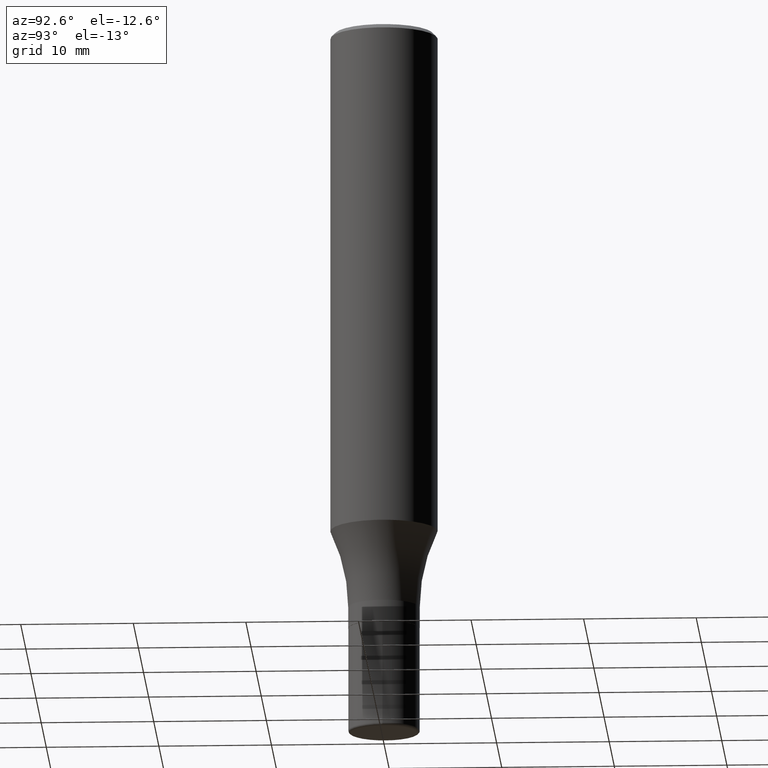
[diagram: clean part render]
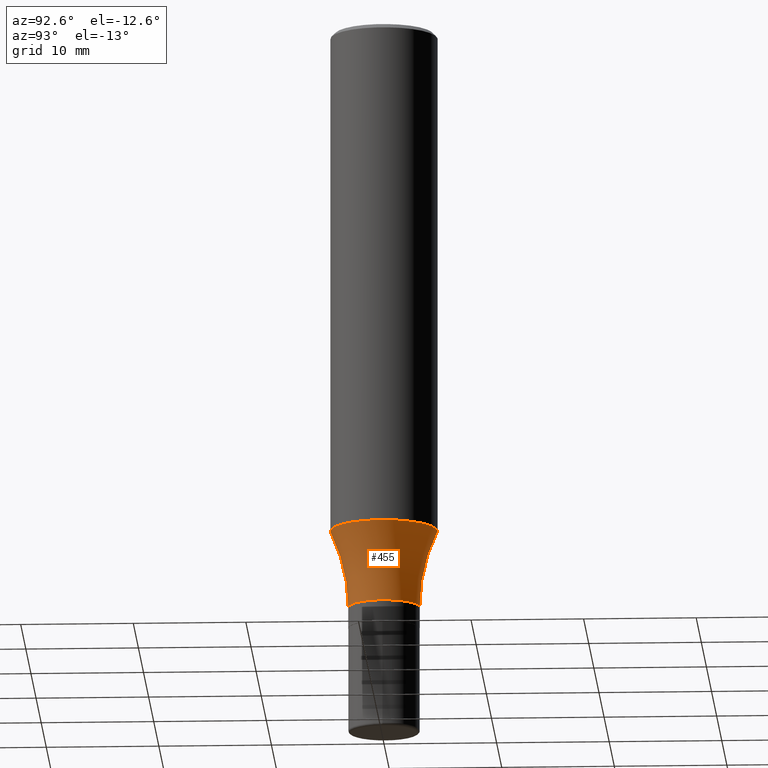
[diagram: same view with one face highlighted and labeled with its STEP entity id]
A machine part, auxiliary view. The second image highlights one B-rep face of the part: STEP entity #455.
In plain terms, the highlighted toroidal blend (fillet) surface has major radius 19.05 mm and minor (blend) radius 15.875 mm.
Its self-contained STEP definition (entity closure, byte-faithful):
#2 = CARTESIAN_POINT ( 'NONE',  ( 5.329070518200801092E-15, 0.7499999999999930056, -2.050000000000002931 ) ) ;
#9 = FACE_OUTER_BOUND ( 'NONE', #350, .T. ) ;
#13 = AXIS2_PLACEMENT_3D ( 'NONE', #154, #317, #519 ) ;
#16 = ORIENTED_EDGE ( 'NONE', *, *, #349, .T. ) ;
#18 = DIRECTION ( 'NONE',  ( -6.982962677686265922E-15, -1.000000000000000000, 3.490836523568370866E-15 ) ) ;
#21 = VERTEX_POINT ( 'NONE', #30 ) ;
#29 = AXIS2_PLACEMENT_3D ( 'NONE', #165, #248, #405 ) ;
#30 = CARTESIAN_POINT ( 'NONE',  ( 1.332267629550230841E-15, 0.1874999999999937550, -1.777568816028709087 ) ) ;
#47 = DIRECTION ( 'NONE',  ( -2.445919078284912062E-29, 3.490836523568370866E-15, 1.000000000000000000 ) ) ;
#75 = CARTESIAN_POINT ( 'NONE',  ( 1.110223024625203083E-15, 0.1249999999999928807, -2.050000000000000711 ) ) ;
#83 = CIRCLE ( 'NONE', #470, 0.6249999999999998890 ) ;
#89 = EDGE_CURVE ( 'NONE', #102, #21, #359, .T. ) ;
#92 = CIRCLE ( 'NONE', #13, 0.1250000000000000278 ) ;
#94 = CARTESIAN_POINT ( 'NONE',  ( 5.013211052679530360E-29, -7.157536744628448622E-15, -2.050000000000000266 ) ) ;
#102 = VERTEX_POINT ( 'NONE', #155 ) ;
#112 = ORIENTED_EDGE ( 'NONE', *, *, #89, .F. ) ;
#122 = AXIS2_PLACEMENT_3D ( 'NONE', #518, #47, #329 ) ;
#136 = CARTESIAN_POINT ( 'NONE',  ( -8.728703347107333448E-16, -0.1250000000000071887, -2.049999999999999822 ) ) ;
#152 = TOROIDAL_SURFACE ( 'NONE', #515, 0.7500000000000001110, 0.6250000000000000000 ) ;
#154 = CARTESIAN_POINT ( 'NONE',  ( 5.014134110484069838E-29, -7.156214873315160631E-15, -2.050000000000000266 ) ) ;
#155 = CARTESIAN_POINT ( 'NONE',  ( -1.309305502066131029E-15, -0.1875000000000061340, -1.777568816028707532 ) ) ;
#165 = CARTESIAN_POINT ( 'NONE',  ( -5.237222008264649546E-15, -0.7500000000000072164, -2.049999999999997602 ) ) ;
#175 = EDGE_CURVE ( 'NONE', #102, #469, #225, .T. ) ;
#225 = CIRCLE ( 'NONE', #29, 0.6249999999999998890 ) ;
#235 = EDGE_CURVE ( 'NONE', #21, #334, #83, .T. ) ;
#248 = DIRECTION ( 'NONE',  ( -1.000000000000000000, 6.982962677686265922E-15, -4.883557194083112340E-29 ) ) ;
#270 = ORIENTED_EDGE ( 'NONE', *, *, #235, .F. ) ;
#280 = DIRECTION ( 'NONE',  ( 7.105427357601003436E-15, 1.000000000000000000, 0.000000000000000000 ) ) ;
#317 = DIRECTION ( 'NONE',  ( -2.445919078284912062E-29, 3.490836523568370866E-15, 1.000000000000000000 ) ) ;
#329 = DIRECTION ( 'NONE',  ( -6.982962677686266711E-15, -1.000000000000000000, 2.913971193241881161E-15 ) ) ;
#334 = VERTEX_POINT ( 'NONE', #75 ) ;
#349 = EDGE_CURVE ( 'NONE', #469, #334, #92, .T. ) ;
#350 = EDGE_LOOP ( 'NONE', ( #270, #112, #391, #16 ) ) ;
#359 = CIRCLE ( 'NONE', #122, 0.1874999999999999722 ) ;
#374 = DIRECTION ( 'NONE',  ( -2.445919078284912062E-29, 3.490836523568370866E-15, 1.000000000000000000 ) ) ;
#391 = ORIENTED_EDGE ( 'NONE', *, *, #175, .T. ) ;
#405 = DIRECTION ( 'NONE',  ( -6.982962677686265133E-15, -1.000000000000000000, 0.000000000000000000 ) ) ;
#455 = ADVANCED_FACE ( 'NONE', ( #9 ), #152, .F. ) ;
#469 = VERTEX_POINT ( 'NONE', #136 ) ;
#470 = AXIS2_PLACEMENT_3D ( 'NONE', #2, #479, #280 ) ;
#479 = DIRECTION ( 'NONE',  ( 1.000000000000000000, -7.105427357601001070E-15, 4.926307611832459186E-29 ) ) ;
#515 = AXIS2_PLACEMENT_3D ( 'NONE', #94, #374, #18 ) ;
#518 = CARTESIAN_POINT ( 'NONE',  ( 4.347789480088940761E-29, -6.205202146149201072E-15, -1.777568816028708421 ) ) ;
#519 = DIRECTION ( 'NONE',  ( -6.982962677686265922E-15, -1.000000000000000000, 4.370956789862820361E-15 ) ) ;